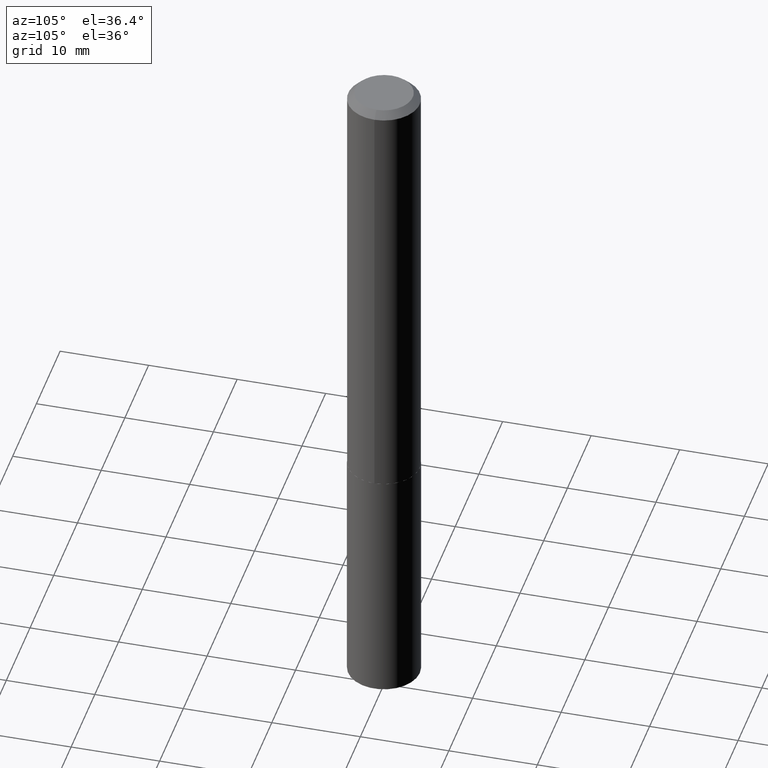
[diagram: clean part render]
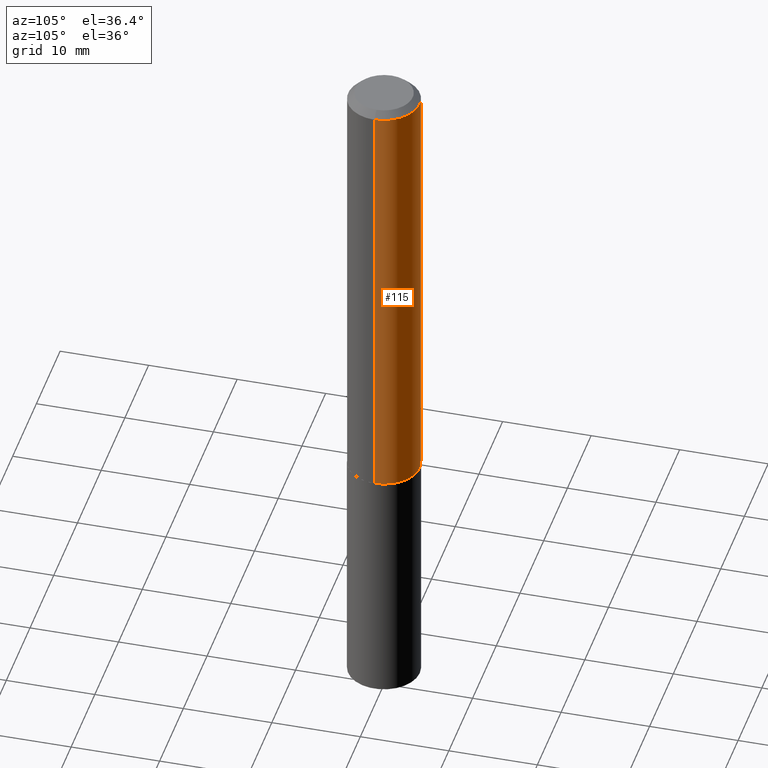
[diagram: same view with one face highlighted and labeled with its STEP entity id]
A machine part, auxiliary view. The second image highlights one B-rep face of the part: STEP entity #115.
In plain terms, the highlighted cylindrical surface (partial cylindrical patch) has radius 4.05 mm, axis along (-0, 0, 1).
Its self-contained STEP definition (entity closure, byte-faithful):
#25 = EDGE_CURVE ( 'NONE', #80, #200, #130, .T. ) ;
#27 = ORIENTED_EDGE ( 'NONE', *, *, #91, .T. ) ;
#34 = FACE_OUTER_BOUND ( 'NONE', #121, .T. ) ;
#38 = CARTESIAN_POINT ( 'NONE',  ( -0.1594500000000002582, -5.751891659895316745E-15, -1.971899999999999986 ) ) ;
#52 = VERTEX_POINT ( 'NONE', #38 ) ;
#58 = CARTESIAN_POINT ( 'NONE',  ( 0.1594500000000001194, -1.113433398957076194E-15, 7.775063869006624280E-30 ) ) ;
#71 = AXIS2_PLACEMENT_3D ( 'NONE', #140, #167, #382 ) ;
#80 = VERTEX_POINT ( 'NONE', #368 ) ;
#87 = DIRECTION ( 'NONE',  ( 1.000000000000000000, -6.982962677686267499E-15, 4.876176775795935232E-29 ) ) ;
#91 = EDGE_CURVE ( 'NONE', #80, #52, #97, .T. ) ;
#97 = CIRCLE ( 'NONE', #318, 0.1594500000000002582 ) ;
#115 = ADVANCED_FACE ( 'NONE', ( #34 ), #217, .T. ) ;
#121 = EDGE_LOOP ( 'NONE', ( #27, #299, #198, #152 ) ) ;
#128 = CARTESIAN_POINT ( 'NONE',  ( 0.000000000000000000, 0.000000000000000000, 0.000000000000000000 ) ) ;
#130 = LINE ( 'NONE', #58, #327 ) ;
#137 = CARTESIAN_POINT ( 'NONE',  ( -0.1594500000000000361, -2.364020029782342724E-15, -0.03125000000000021511 ) ) ;
#140 = CARTESIAN_POINT ( 'NONE',  ( 7.642090019328603538E-31, -1.091087918388490390E-16, -0.03125000000000021511 ) ) ;
#142 = CARTESIAN_POINT ( 'NONE',  ( 0.1594500000000000361, -1.222542190795924506E-15, -0.03125000000000021511 ) ) ;
#152 = ORIENTED_EDGE ( 'NONE', *, *, #25, .F. ) ;
#167 = DIRECTION ( 'NONE',  ( -2.445468806185136597E-29, 3.491481338843145583E-15, 1.000000000000000000 ) ) ;
#172 = LINE ( 'NONE', #329, #230 ) ;
#196 = AXIS2_PLACEMENT_3D ( 'NONE', #128, #213, #87 ) ;
#198 = ORIENTED_EDGE ( 'NONE', *, *, #296, .F. ) ;
#200 = VERTEX_POINT ( 'NONE', #142 ) ;
#213 = DIRECTION ( 'NONE',  ( -2.445468806185136597E-29, 3.491481338843145583E-15, 1.000000000000000000 ) ) ;
#217 = CYLINDRICAL_SURFACE ( 'NONE', #196, 0.1594500000000001194 ) ;
#230 = VECTOR ( 'NONE', #365, 39.37007874015748143 ) ;
#296 = EDGE_CURVE ( 'NONE', #200, #328, #358, .T. ) ;
#299 = ORIENTED_EDGE ( 'NONE', *, *, #367, .T. ) ;
#304 = CARTESIAN_POINT ( 'NONE',  ( 4.822219938916470979E-29, -6.884852052064798720E-15, -1.971899999999999986 ) ) ;
#318 = AXIS2_PLACEMENT_3D ( 'NONE', #304, #337, #333 ) ;
#327 = VECTOR ( 'NONE', #343, 39.37007874015748143 ) ;
#328 = VERTEX_POINT ( 'NONE', #137 ) ;
#329 = CARTESIAN_POINT ( 'NONE',  ( -0.1594500000000001194, 1.132960392169480595E-15, -7.843242001411453542E-30 ) ) ;
#333 = DIRECTION ( 'NONE',  ( 1.000000000000000000, -6.982962677686267499E-15, 0.000000000000000000 ) ) ;
#337 = DIRECTION ( 'NONE',  ( -2.445468806185136597E-29, 3.491481338843145583E-15, 1.000000000000000000 ) ) ;
#343 = DIRECTION ( 'NONE',  ( -2.445468806185136877E-29, 3.491481338843145188E-15, 1.000000000000000000 ) ) ;
#358 = CIRCLE ( 'NONE', #71, 0.1594500000000000361 ) ;
#365 = DIRECTION ( 'NONE',  ( -2.445468806185136877E-29, 3.491481338843145188E-15, 1.000000000000000000 ) ) ;
#367 = EDGE_CURVE ( 'NONE', #52, #328, #172, .T. ) ;
#368 = CARTESIAN_POINT ( 'NONE',  ( 0.1594500000000002582, -7.998285451021876295E-15, -1.971899999999999986 ) ) ;
#382 = DIRECTION ( 'NONE',  ( 1.000000000000000000, -6.982962677686265922E-15, 0.000000000000000000 ) ) ;